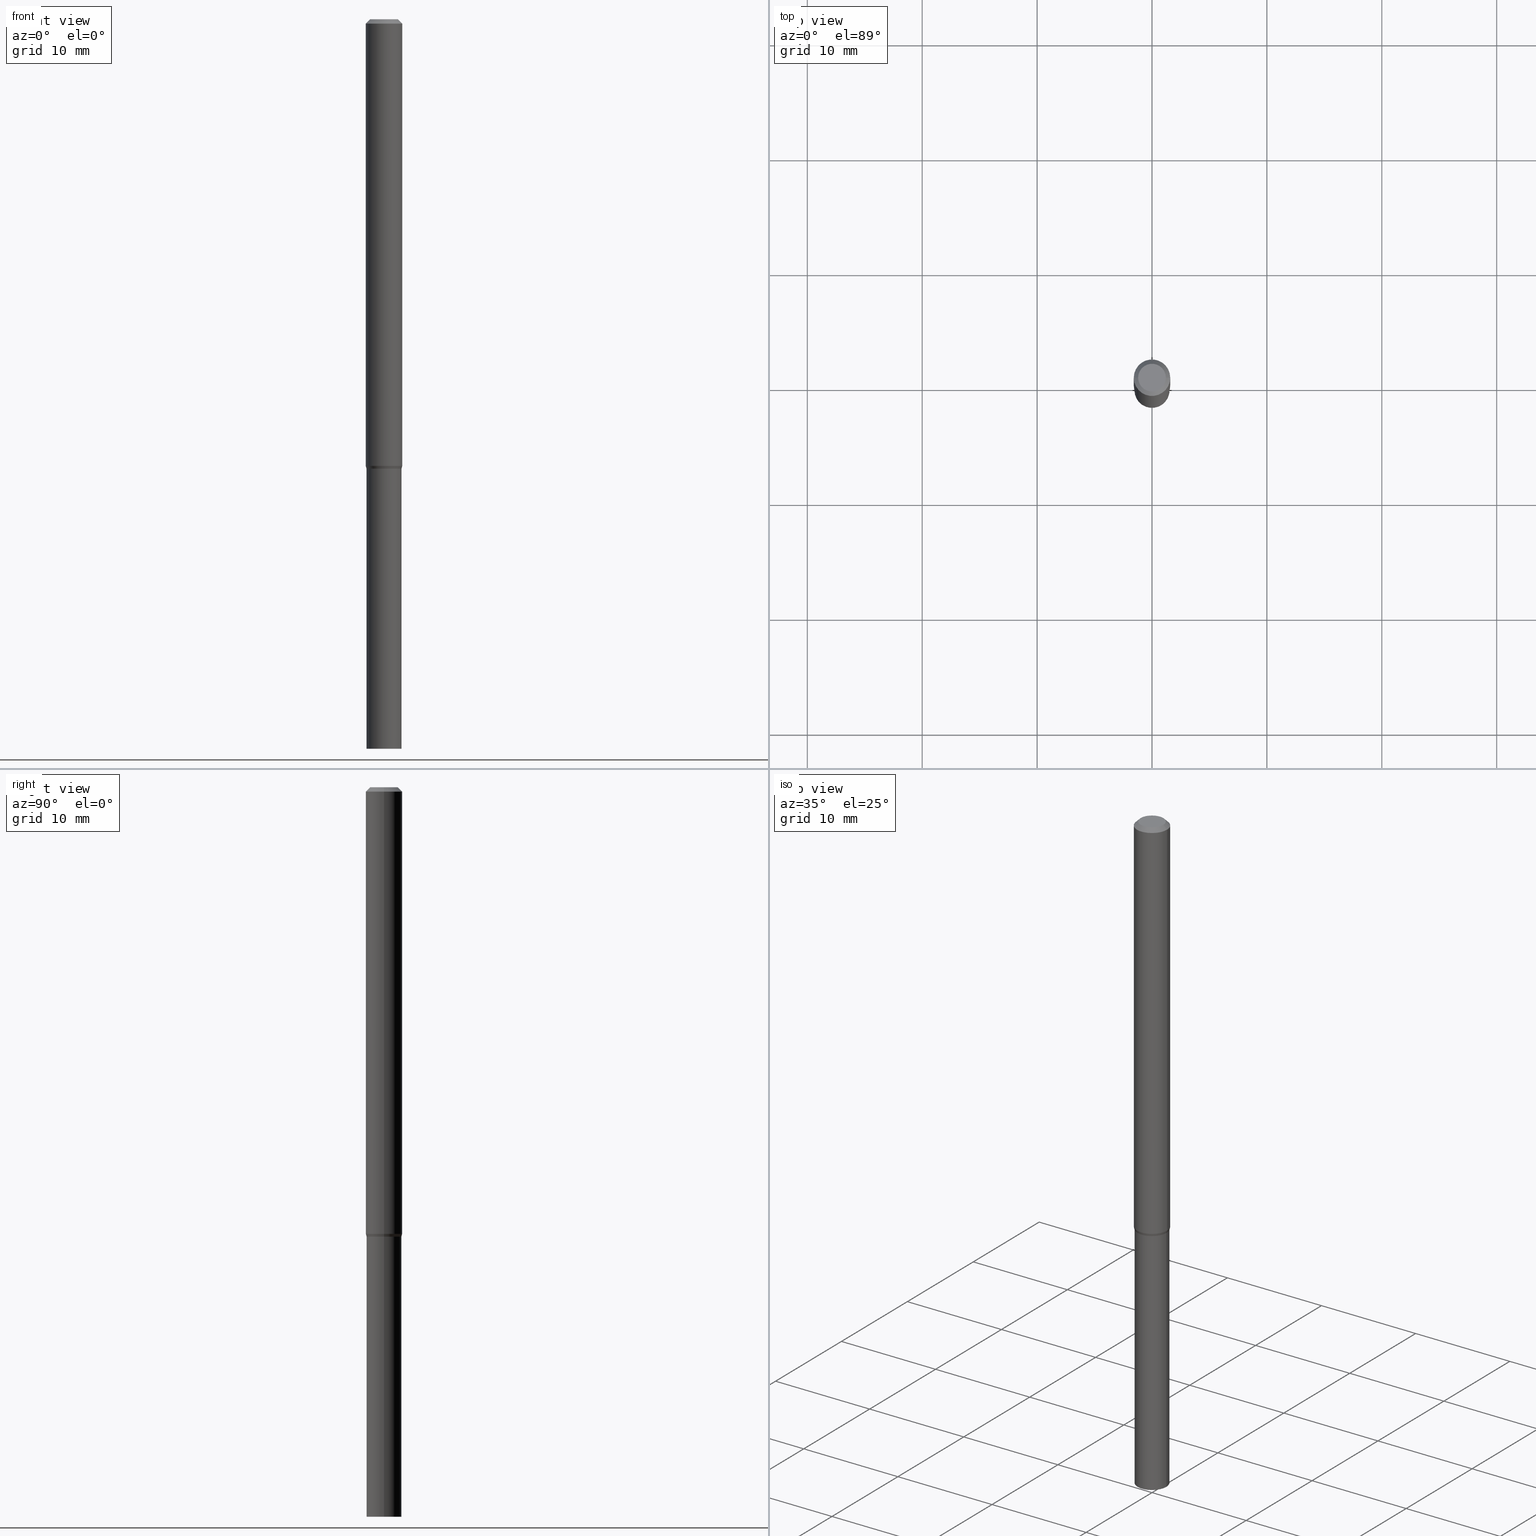
[diagram: canonical four-view strip — front | top / right | iso, engineering-drawing reading convention]
A machine part, canonical four-view strip (front | top / right | iso — engineering-drawing reading convention). The complete STEP part file that produces these views, byte-faithful:
ISO-10303-21;
HEADER;
FILE_DESCRIPTION (( 'STEP AP203' ),
    '1' );
FILE_NAME ('01282.STEP',
    '2024-03-20T00:58:47',
    ( '' ),
    ( '' ),
    'SwSTEP 2.0',
    'SolidWorks 2023',
    '' );
FILE_SCHEMA (( 'CONFIG_CONTROL_DESIGN' ));
ENDSEC;

DATA;
#1 = PERSON_AND_ORGANIZATION ( #309, #400 ) ;
#2 = ORIENTED_EDGE ( 'NONE', *, *, #25, .T. ) ;
#3 = DIRECTION ( 'NONE',  ( 1.000000000000000000, -6.982962677686266711E-15, 0.000000000000000000 ) ) ;
#4 = AXIS2_PLACEMENT_3D ( 'NONE', #335, #409, #124 ) ;
#5 = EDGE_LOOP ( 'NONE', ( #407, #432, #93, #16 ) ) ;
#6 = CALENDAR_DATE ( 2024, 19, 3 ) ;
#7 = DIMENSIONAL_EXPONENTS ( 1.000000000000000000, 0.000000000000000000, 0.000000000000000000, 0.000000000000000000, 0.000000000000000000, 0.000000000000000000, 0.000000000000000000 ) ;
#8 = ORIENTED_EDGE ( 'NONE', *, *, #361, .T. ) ;
#9 = VERTEX_POINT ( 'NONE', #159 ) ;
#10 = PERSON_AND_ORGANIZATION ( #309, #400 ) ;
#11 = ADVANCED_BREP_SHAPE_REPRESENTATION ( '01282', ( #211, #81, #4 ), #195 ) ;
#12 = ADVANCED_FACE ( 'NONE', ( #301 ), #98, .T. ) ;
#13 = ORIENTED_EDGE ( 'NONE', *, *, #156, .T. ) ;
#14 = LOCAL_TIME ( 20, 58, 47.00000000000000000, #259 ) ;
#15 = AXIS2_PLACEMENT_3D ( 'NONE', #104, #349, #30 ) ;
#16 = ORIENTED_EDGE ( 'NONE', *, *, #21, .F. ) ;
#17 = EDGE_LOOP ( 'NONE', ( #75, #13, #234, #299 ) ) ;
#18 = ADVANCED_FACE ( 'NONE', ( #125 ), #52, .T. ) ;
#19 = CARTESIAN_POINT ( 'NONE',  ( 0.05999999999999999778, -5.795859022479621407E-15, -1.540000000000000258 ) ) ;
#20 = VERTEX_POINT ( 'NONE', #386 ) ;
#21 = EDGE_CURVE ( 'NONE', #339, #302, #109, .T. ) ;
#22 = CIRCLE ( 'NONE', #290, 0.06000000000000046962 ) ;
#23 = DIRECTION ( 'NONE',  ( 1.000000000000000000, -6.982962677686259611E-15, 0.000000000000000000 ) ) ;
#24 = LOCAL_TIME ( 20, 58, 47.00000000000000000, #330 ) ;
#25 = EDGE_CURVE ( 'NONE', #395, #122, #172, .T. ) ;
#26 = ORIENTED_EDGE ( 'NONE', *, *, #178, .F. ) ;
#27 = DIRECTION ( 'NONE',  ( 1.000000000000000000, -6.982962677686265922E-15, 4.876176775795935793E-29 ) ) ;
#28 = CARTESIAN_POINT ( 'NONE',  ( 0.05949999999999999734, -5.792367541140778400E-15, -1.540000000000000480 ) ) ;
#29 = CARTESIAN_POINT ( 'NONE',  ( 3.668203209277705088E-31, -5.237222008264718399E-17, -0.01499999999999999944 ) ) ;
#30 = DIRECTION ( 'NONE',  ( -1.000000000000000000, 6.982962677686265922E-15, -4.876176775795935793E-29 ) ) ;
#31 = DIRECTION ( 'NONE',  ( -2.438088387897960049E-29, 3.491481338843145188E-15, 1.000000000000000000 ) ) ;
#32 = CONICAL_SURFACE ( 'NONE', #84, 0.06000000000000046962, 0.2617993877991488527 ) ;
#33 = DIRECTION ( 'NONE',  ( 1.000000000000000000, -6.982962677686266711E-15, 4.876176775795935793E-29 ) ) ;
#34 = FACE_OUTER_BOUND ( 'NONE', #148, .T. ) ;
#35 = DIRECTION ( 'NONE',  ( 1.000000000000000000, -6.982962677686265922E-15, 4.876176775795935793E-29 ) ) ;
#36 = CARTESIAN_POINT ( 'NONE',  ( -0.06000000000000046962, -4.925385853977582730E-15, -1.540000000000000036 ) ) ;
#37 = PRODUCT_DEFINITION_FORMATION_WITH_SPECIFIED_SOURCE ( 'ANY', '', #379, .NOT_KNOWN. ) ;
#38 = CALENDAR_DATE ( 2024, 19, 3 ) ;
#39 = EDGE_CURVE ( 'NONE', #89, #222, #113, .T. ) ;
#40 = PERSON_AND_ORGANIZATION ( #309, #400 ) ;
#41 = ORIENTED_EDGE ( 'NONE', *, *, #278, .F. ) ;
#42 = APPROVAL_STATUS ( 'not_yet_approved' ) ;
#43 = AXIS2_PLACEMENT_3D ( 'NONE', #69, #304, #212 ) ;
#44 = EDGE_CURVE ( 'NONE', #164, #127, #368, .T. ) ;
#45 = ORIENTED_EDGE ( 'NONE', *, *, #242, .F. ) ;
#46 = ORIENTED_EDGE ( 'NONE', *, *, #458, .F. ) ;
#47 = EDGE_CURVE ( 'NONE', #122, #227, #427, .T. ) ;
#48 = EDGE_LOOP ( 'NONE', ( #26, #45 ) ) ;
#49 = ORIENTED_EDGE ( 'NONE', *, *, #110, .F. ) ;
#50 = SECURITY_CLASSIFICATION ( '', '', #398 ) ;
#51 = LINE ( 'NONE', #191, #332 ) ;
#52 = CONICAL_SURFACE ( 'NONE', #170, 0.06250000000000000000, 0.7853981633974450594 ) ;
#53 = ORIENTED_EDGE ( 'NONE', *, *, #184, .F. ) ;
#54 = EDGE_LOOP ( 'NONE', ( #369, #329, #413, #232 ) ) ;
#55 = ORIENTED_EDGE ( 'NONE', *, *, #128, .F. ) ;
#56 = APPLICATION_CONTEXT ( 'configuration controlled 3d designs of mechanical parts and assemblies' ) ;
#57 = CARTESIAN_POINT ( 'NONE',  ( 0.06000000000000046962, -5.795859022479622985E-15, -1.540000000000000036 ) ) ;
#58 = DIRECTION ( 'NONE',  ( -2.445468806185136597E-29, 3.491481338843145583E-15, 1.000000000000000000 ) ) ;
#59 = EDGE_CURVE ( 'NONE', #382, #183, #306, .T. ) ;
#60 = DIRECTION ( 'NONE',  ( -2.445468806185136597E-29, 3.491481338843145583E-15, 1.000000000000000000 ) ) ;
#61 = CARTESIAN_POINT ( 'NONE',  ( 0.000000000000000000, 0.000000000000000000, 0.000000000000000000 ) ) ;
#62 = CARTESIAN_POINT ( 'NONE',  ( -2.428242233434862517E-45, 3.466886358470595669E-31, 9.929557176494321944E-17 ) ) ;
#63 = CARTESIAN_POINT ( 'NONE',  ( 3.766021961525110516E-29, -5.376881261818443984E-15, -1.540000000000000036 ) ) ;
#64 = CIRCLE ( 'NONE', #366, 0.05949999999999999734 ) ;
#65 = CARTESIAN_POINT ( 'NONE',  ( -0.05999999999999999778, -6.626466663007093973E-15, -1.540000000000000258 ) ) ;
#66 = DIRECTION ( 'NONE',  ( -2.445468806185136597E-29, 3.491481338843145583E-15, 1.000000000000000000 ) ) ;
#67 = CARTESIAN_POINT ( 'NONE',  ( 0.000000000000000000, 0.000000000000000000, 0.000000000000000000 ) ) ;
#68 = FACE_OUTER_BOUND ( 'NONE', #5, .T. ) ;
#69 = CARTESIAN_POINT ( 'NONE',  ( 0.000000000000000000, 0.000000000000000000, 0.000000000000000000 ) ) ;
#70 = CARTESIAN_POINT ( 'NONE',  ( 3.766021961525111637E-29, -5.376881261818446351E-15, -1.540000000000000480 ) ) ;
#71 = AXIS2_PLACEMENT_3D ( 'NONE', #29, #100, #466 ) ;
#72 = VECTOR ( 'NONE', #324, 39.37007874015748143 ) ;
#73 = CALENDAR_DATE ( 2024, 19, 3 ) ;
#74 = CC_DESIGN_PERSON_AND_ORGANIZATION_ASSIGNMENT ( #1, #288, ( #37 ) ) ;
#75 = ORIENTED_EDGE ( 'NONE', *, *, #44, .F. ) ;
#76 = DIRECTION ( 'NONE',  ( -2.445468806185136597E-29, 3.491481338843145583E-15, 1.000000000000000000 ) ) ;
#77 = VECTOR ( 'NONE', #145, 39.37007874015748143 ) ;
#78 = DIRECTION ( 'NONE',  ( -2.445468806185136597E-29, 3.491481338843145583E-15, 1.000000000000000000 ) ) ;
#79 = EDGE_LOOP ( 'NONE', ( #411, #296 ) ) ;
#80 = APPROVAL_STATUS ( 'not_yet_approved' ) ;
#81 = MANIFOLD_SOLID_BREP ( 'Body-Move/Copy2[2]', #293 ) ;
#82 = EDGE_LOOP ( 'NONE', ( #85, #452, #8, #403 ) ) ;
#83 = EDGE_CURVE ( 'NONE', #302, #9, #262, .T. ) ;
#84 = AXIS2_PLACEMENT_3D ( 'NONE', #281, #213, #462 ) ;
#85 = ORIENTED_EDGE ( 'NONE', *, *, #25, .F. ) ;
#86 = CARTESIAN_POINT ( 'NONE',  ( 0.06000000000000046962, -5.795859022479622985E-15, -1.540000000000000036 ) ) ;
#87 = VECTOR ( 'NONE', #243, 39.37007874015748143 ) ;
#88 = DATE_TIME_ROLE ( 'creation_date' ) ;
#89 = VERTEX_POINT ( 'NONE', #36 ) ;
#90 = FACE_OUTER_BOUND ( 'NONE', #48, .T. ) ;
#91 = ORIENTED_EDGE ( 'NONE', *, *, #312, .T. ) ;
#92 = PLANE ( 'NONE',  #425 ) ;
#93 = ORIENTED_EDGE ( 'NONE', *, *, #83, .F. ) ;
#94 = EDGE_CURVE ( 'NONE', #395, #20, #197, .T. ) ;
#95 = CONICAL_SURFACE ( 'NONE', #394, 0.06250000000000000000, 0.7853981633974450594 ) ;
#96 = EDGE_CURVE ( 'NONE', #382, #196, #347, .T. ) ;
#97 = CARTESIAN_POINT ( 'NONE',  ( 0.000000000000000000, 0.000000000000000000, 0.000000000000000000 ) ) ;
#98 = CONICAL_SURFACE ( 'NONE', #221, 0.06000000000000046962, 0.2617993877991488527 ) ;
#99 = DIRECTION ( 'NONE',  ( -1.000000000000000000, 6.982962677686265922E-15, -4.876176775795935793E-29 ) ) ;
#100 = DIRECTION ( 'NONE',  ( -2.445468806185136597E-29, 3.491481338843145583E-15, 1.000000000000000000 ) ) ;
#101 = DIRECTION ( 'NONE',  ( 1.000000000000000000, -6.982962677686261977E-15, 0.000000000000000000 ) ) ;
#102 = CARTESIAN_POINT ( 'NONE',  ( 0.06000000000000019901, -5.794113281810200692E-15, -1.539500000000000313 ) ) ;
#103 = ADVANCED_FACE ( 'NONE', ( #136 ), #134, .T. ) ;
#104 = CARTESIAN_POINT ( 'NONE',  ( 3.316907271900976096E-16, 0.04749999999999999362, -1.161975777125777867E-16 ) ) ;
#105 = FACE_OUTER_BOUND ( 'NONE', #54, .T. ) ;
#106 = CIRCLE ( 'NONE', #416, 0.05999999999999999778 ) ;
#107 = ADVANCED_FACE ( 'NONE', ( #34 ), #391, .F. ) ;
#108 = LENGTH_MEASURE_WITH_UNIT ( LENGTH_MEASURE( 0.02539999999999999897 ), #247 );
#109 = LINE ( 'NONE', #28, #456 ) ;
#110 = EDGE_CURVE ( 'NONE', #183, #382, #360, .T. ) ;
#111 = PERSON_AND_ORGANIZATION_ROLE ( 'classification_officer' ) ;
#112 = CC_DESIGN_DATE_AND_TIME_ASSIGNMENT ( #150, #88, ( #286 ) ) ;
#113 = CIRCLE ( 'NONE', #252, 0.06000000000000046962 ) ;
#114 = VECTOR ( 'NONE', #186, 39.37007874015748143 ) ;
#115 = DATE_AND_TIME ( #333, #155 ) ;
#116 = DATE_AND_TIME ( #38, #383 ) ;
#117 = CIRCLE ( 'NONE', #344, 0.04749999999999999362 ) ;
#118 = ORIENTED_EDGE ( 'NONE', *, *, #458, .T. ) ;
#119 = ORIENTED_EDGE ( 'NONE', *, *, #270, .T. ) ;
#120 = ADVANCED_FACE ( 'NONE', ( #421 ), #282, .F. ) ;
#121 = CARTESIAN_POINT ( 'NONE',  ( 3.668203209277705088E-31, -5.237222008264718399E-17, -0.01499999999999999944 ) ) ;
#122 = VERTEX_POINT ( 'NONE', #65 ) ;
#123 = ADVANCED_FACE ( 'NONE', ( #175 ), #461, .T. ) ;
#124 = DIRECTION ( 'NONE',  ( 1.000000000000000000, 0.000000000000000000, 0.000000000000000000 ) ) ;
#125 = FACE_OUTER_BOUND ( 'NONE', #310, .T. ) ;
#126 = CLOSED_SHELL ( 'NONE', ( #103, #362, #123, #107 ) ) ;
#127 = VERTEX_POINT ( 'NONE', #284 ) ;
#128 = EDGE_CURVE ( 'NONE', #222, #302, #317, .T. ) ;
#129 = ORIENTED_EDGE ( 'NONE', *, *, #203, .T. ) ;
#130 = CARTESIAN_POINT ( 'NONE',  ( 3.766021961525111077E-29, -5.376881261818445562E-15, -1.540000000000000258 ) ) ;
#131 = CARTESIAN_POINT ( 'NONE',  ( 3.743205426942595148E-29, -5.344305297442846949E-15, -1.530669872981079482 ) ) ;
#132 = CC_DESIGN_APPROVAL ( #204, ( #37 ) ) ;
#133 = CARTESIAN_POINT ( 'NONE',  ( -0.06000000000000033085, 4.263256414560624623E-16, -2.951361054152959528E-30 ) ) ;
#134 = CYLINDRICAL_SURFACE ( 'NONE', #441, 0.05999999999999999778 ) ;
#135 = DIRECTION ( 'NONE',  ( 1.000000000000000000, -6.982962677686267499E-15, 4.884662768193073002E-29 ) ) ;
#136 = FACE_OUTER_BOUND ( 'NONE', #404, .T. ) ;
#137 = DIRECTION ( 'NONE',  ( -2.445468806185136877E-29, 3.491481338843145188E-15, 1.000000000000000000 ) ) ;
#138 = ADVANCED_FACE ( 'NONE', ( #464 ), #144, .T. ) ;
#139 = DIRECTION ( 'NONE',  ( 1.000000000000000000, -6.982962677686267499E-15, 4.876176775795936353E-29 ) ) ;
#140 = UNCERTAINTY_MEASURE_WITH_UNIT (LENGTH_MEASURE( 1.000000000000000082E-05 ), #322, 'distance_accuracy_value', 'NONE');
#141 = DIRECTION ( 'NONE',  ( 1.000000000000000000, -6.982962677686259611E-15, 0.000000000000000000 ) ) ;
#142 = AXIS2_PLACEMENT_3D ( 'NONE', #61, #318, #357 ) ;
#143 = AXIS2_PLACEMENT_3D ( 'NONE', #429, #205, #423 ) ;
#144 = CYLINDRICAL_SURFACE ( 'NONE', #43, 0.06250000000000000000 ) ;
#145 = DIRECTION ( 'NONE',  ( -2.445468806185136877E-29, 3.491481338843145188E-15, 1.000000000000000000 ) ) ;
#146 = EDGE_CURVE ( 'NONE', #20, #395, #374, .T. ) ;
#147 = CALENDAR_DATE ( 2024, 19, 3 ) ;
#148 = EDGE_LOOP ( 'NONE', ( #192, #265 ) ) ;
#149 = CONICAL_SURFACE ( 'NONE', #372, 0.05949999999999999734, 0.7853981633974739252 ) ;
#150 = DATE_AND_TIME ( #147, #237 ) ;
#151 = EDGE_LOOP ( 'NONE', ( #336, #190, #258, #274 ) ) ;
#152 = SHAPE_DEFINITION_REPRESENTATION ( #323, #11 ) ;
#153 = EDGE_LOOP ( 'NONE', ( #157, #447, #439, #276 ) ) ;
#154 = APPROVAL_ROLE ( '' ) ;
#155 = LOCAL_TIME ( 20, 58, 47.00000000000000000, #253 ) ;
#156 = EDGE_CURVE ( 'NONE', #164, #196, #219, .T. ) ;
#157 = ORIENTED_EDGE ( 'NONE', *, *, #226, .F. ) ;
#158 = AXIS2_PLACEMENT_3D ( 'NONE', #199, #355, #418 ) ;
#159 = CARTESIAN_POINT ( 'NONE',  ( -0.06000000000000019901, -4.948809879692962779E-15, -1.539500000000000313 ) ) ;
#160 = ORIENTED_EDGE ( 'NONE', *, *, #96, .T. ) ;
#161 = CARTESIAN_POINT ( 'NONE',  ( 0.06250000000000000000, -4.811533449433679005E-16, -0.01499999999999999944 ) ) ;
#162 = CYLINDRICAL_SURFACE ( 'NONE', #163, 0.06000000000000033085 ) ;
#163 = AXIS2_PLACEMENT_3D ( 'NONE', #97, #412, #273 ) ;
#164 = VERTEX_POINT ( 'NONE', #365 ) ;
#165 = AXIS2_PLACEMENT_3D ( 'NONE', #131, #58, #321 ) ;
#166 = DIRECTION ( 'NONE',  ( 1.000000000000000000, -6.982962677686267499E-15, 4.876176775795936353E-29 ) ) ;
#167 = DIRECTION ( 'NONE',  ( -2.445468806185136877E-29, 3.491481338843145188E-15, 1.000000000000000000 ) ) ;
#168 = DIRECTION ( 'NONE',  ( -2.445468806185136597E-29, 3.491481338843145583E-15, 1.000000000000000000 ) ) ;
#169 = DIRECTION ( 'NONE',  ( -2.445468806185136597E-29, 3.491481338843145583E-15, 1.000000000000000000 ) ) ;
#170 = AXIS2_PLACEMENT_3D ( 'NONE', #272, #410, #287 ) ;
#171 = APPLICATION_CONTEXT ( 'configuration controlled 3d designs of mechanical parts and assemblies' ) ;
#172 = LINE ( 'NONE', #426, #87 ) ;
#173 = EDGE_CURVE ( 'NONE', #196, #216, #448, .T. ) ;
#174 = CARTESIAN_POINT ( 'NONE',  ( 3.766021961525111637E-29, -5.376881261818446351E-15, -1.540000000000000480 ) ) ;
#175 = FACE_OUTER_BOUND ( 'NONE', #82, .T. ) ;
#176 = DIRECTION ( 'NONE',  ( 0.7071067811865656694, -2.468850131082446387E-15, 0.7071067811865294761 ) ) ;
#177 = VECTOR ( 'NONE', #311, 39.37007874015748143 ) ;
#178 = EDGE_CURVE ( 'NONE', #339, #343, #305, .T. ) ;
#179 = APPROVAL_ROLE ( '' ) ;
#180 = CARTESIAN_POINT ( 'NONE',  ( 3.668203209277705088E-31, -5.237222008264718399E-17, -0.01499999999999999944 ) ) ;
#181 = DIRECTION ( 'NONE',  ( -2.445468806185136597E-29, 3.491481338843145583E-15, 1.000000000000000000 ) ) ;
#182 = APPROVAL_PERSON_ORGANIZATION ( #364, #303, #437 ) ;
#183 = VERTEX_POINT ( 'NONE', #194 ) ;
#184 = EDGE_CURVE ( 'NONE', #227, #122, #106, .T. ) ;
#185 = EDGE_LOOP ( 'NONE', ( #363, #450, #267, #385 ) ) ;
#186 = DIRECTION ( 'NONE',  ( 0.7071067811865452413, -7.319954787623248157E-15, -0.7071067811865497932 ) ) ;
#187 = ORIENTED_EDGE ( 'NONE', *, *, #264, .T. ) ;
#188 = AXIS2_PLACEMENT_3D ( 'NONE', #236, #453, #239 ) ;
#189 = CC_DESIGN_PERSON_AND_ORGANIZATION_ASSIGNMENT ( #435, #291, ( #286 ) ) ;
#190 = ORIENTED_EDGE ( 'NONE', *, *, #289, .T. ) ;
#191 = CARTESIAN_POINT ( 'NONE',  ( -0.06000000000000046962, -4.950555620362381127E-15, -1.540000000000000036 ) ) ;
#192 = ORIENTED_EDGE ( 'NONE', *, *, #184, .T. ) ;
#193 = ORIENTED_EDGE ( 'NONE', *, *, #110, .T. ) ;
#194 = CARTESIAN_POINT ( 'NONE',  ( -0.06250000000000000000, -4.900216087592785122E-15, -1.530669872981079482 ) ) ;
#195 =( GEOMETRIC_REPRESENTATION_CONTEXT ( 3 ) GLOBAL_UNCERTAINTY_ASSIGNED_CONTEXT ( ( #140 ) ) GLOBAL_UNIT_ASSIGNED_CONTEXT ( ( #322, #428, #251 ) ) REPRESENTATION_CONTEXT ( 'NONE', 'WORKASPACE' ) );
#196 = VERTEX_POINT ( 'NONE', #231 ) ;
#197 = CIRCLE ( 'NONE', #158, 0.05999999999999999778 ) ;
#198 = CARTESIAN_POINT ( 'NONE',  ( -0.05949999999999999734, -4.954108334041186759E-15, -1.540000000000000480 ) ) ;
#199 = CARTESIAN_POINT ( 'NONE',  ( 6.113672015462842613E-29, -8.728703347107864943E-15, -2.500000000000000000 ) ) ;
#200 = DIRECTION ( 'NONE',  ( -1.000000000000000000, 6.982962677686266711E-15, 0.000000000000000000 ) ) ;
#201 = DIRECTION ( 'NONE',  ( -2.445468806185136597E-29, 3.491481338843145583E-15, 1.000000000000000000 ) ) ;
#202 = DESIGN_CONTEXT ( 'detailed design', #56, 'design' ) ;
#203 = EDGE_CURVE ( 'NONE', #222, #382, #268, .T. ) ;
#204 = APPROVAL ( #42, 'UNSPECIFIED' ) ;
#205 = DIRECTION ( 'NONE',  ( -2.445468806185136597E-29, 3.491481338843145583E-15, 1.000000000000000000 ) ) ;
#206 = CARTESIAN_POINT ( 'NONE',  ( -0.05949999999999999734, -4.951459106867074769E-15, -1.540000000000000480 ) ) ;
#207 = CARTESIAN_POINT ( 'NONE',  ( 3.766021961525110516E-29, -5.376881261818443984E-15, -1.540000000000000036 ) ) ;
#208 = CARTESIAN_POINT ( 'NONE',  ( 0.05999999999999999778, -4.189777606611760421E-16, 2.925706065477561756E-30 ) ) ;
#209 = CARTESIAN_POINT ( 'NONE',  ( 0.06000000000000033085, -4.189777606611783101E-16, 2.925706065477577521E-30 ) ) ;
#210 = DIRECTION ( 'NONE',  ( -2.445468806185136597E-29, 3.491481338843145583E-15, 1.000000000000000000 ) ) ;
#211 = MANIFOLD_SOLID_BREP ( 'Body-Move/Copy2[1]', #126 ) ;
#212 = DIRECTION ( 'NONE',  ( 1.000000000000000000, -6.982962677686266711E-15, 4.876176775795935793E-29 ) ) ;
#213 = DIRECTION ( 'NONE',  ( -2.445468806185136597E-29, 3.491481338843145583E-15, 1.000000000000000000 ) ) ;
#214 = CIRCLE ( 'NONE', #71, 0.06250000000000000000 ) ;
#215 = PERSON_AND_ORGANIZATION_ROLE ( 'design_owner' ) ;
#216 = VERTEX_POINT ( 'NONE', #300 ) ;
#217 = APPROVAL_DATE_TIME ( #116, #303 ) ;
#218 = CC_DESIGN_PERSON_AND_ORGANIZATION_ASSIGNMENT ( #10, #215, ( #379 ) ) ;
#219 = LINE ( 'NONE', #161, #114 ) ;
#220 = CIRCLE ( 'NONE', #188, 0.06000000000000019901 ) ;
#221 = AXIS2_PLACEMENT_3D ( 'NONE', #230, #444, #377 ) ;
#222 = VERTEX_POINT ( 'NONE', #86 ) ;
#223 = COORDINATED_UNIVERSAL_TIME_OFFSET ( 5, 0, .BEHIND. ) ;
#224 = CARTESIAN_POINT ( 'NONE',  ( 6.113672015462842613E-29, -8.728703347107864943E-15, -2.500000000000000000 ) ) ;
#225 = ADVANCED_FACE ( 'NONE', ( #408 ), #95, .T. ) ;
#226 = EDGE_CURVE ( 'NONE', #343, #9, #342, .T. ) ;
#227 = VERTEX_POINT ( 'NONE', #19 ) ;
#228 = CARTESIAN_POINT ( 'NONE',  ( 3.766021961525111637E-29, -5.376881261818446351E-15, -1.540000000000000480 ) ) ;
#229 = AXIS2_PLACEMENT_3D ( 'NONE', #180, #181, #3 ) ;
#230 = CARTESIAN_POINT ( 'NONE',  ( 3.766021961525110516E-29, -5.376881261818443984E-15, -1.540000000000000036 ) ) ;
#231 = CARTESIAN_POINT ( 'NONE',  ( 0.06250000000000000000, -4.888073874380388472E-16, -0.01499999999999999944 ) ) ;
#232 = ORIENTED_EDGE ( 'NONE', *, *, #203, .F. ) ;
#233 = DIRECTION ( 'NONE',  ( -2.438088387897960049E-29, 3.491481338843145188E-15, 1.000000000000000000 ) ) ;
#234 = ORIENTED_EDGE ( 'NONE', *, *, #173, .T. ) ;
#235 = PRODUCT_RELATED_PRODUCT_CATEGORY ( 'detail', '', ( #379 ) ) ;
#236 = CARTESIAN_POINT ( 'NONE',  ( 3.764799227122018275E-29, -5.375135521149024058E-15, -1.539500000000000313 ) ) ;
#237 = LOCAL_TIME ( 20, 58, 47.00000000000000000, #223 ) ;
#238 = ORIENTED_EDGE ( 'NONE', *, *, #312, .F. ) ;
#239 = DIRECTION ( 'NONE',  ( 1.000000000000000000, -6.982962677686261189E-15, 0.000000000000000000 ) ) ;
#240 = CARTESIAN_POINT ( 'NONE',  ( 3.743205426942595148E-29, -5.344305297442846949E-15, -1.530669872981079482 ) ) ;
#241 = DIRECTION ( 'NONE',  ( -2.445468806185136597E-29, 3.491481338843145583E-15, 1.000000000000000000 ) ) ;
#242 = EDGE_CURVE ( 'NONE', #343, #339, #64, .T. ) ;
#243 = DIRECTION ( 'NONE',  ( -2.445468806185136877E-29, 3.491481338843145188E-15, 1.000000000000000000 ) ) ;
#244 = DIRECTION ( 'NONE',  ( 1.000000000000000000, -6.982962677686261977E-15, 0.000000000000000000 ) ) ;
#245 = DIRECTION ( 'NONE',  ( -2.445468806185136877E-29, 3.491481338843145188E-15, 1.000000000000000000 ) ) ;
#246 = AXIS2_PLACEMENT_3D ( 'NONE', #224, #78, #354 ) ;
#247 =( LENGTH_UNIT ( ) NAMED_UNIT ( * ) SI_UNIT ( $, .METRE. ) );
#248 = CARTESIAN_POINT ( 'NONE',  ( 0.000000000000000000, 0.000000000000000000, 0.000000000000000000 ) ) ;
#249 = CYLINDRICAL_SURFACE ( 'NONE', #351, 0.06000000000000033085 ) ;
#250 = CARTESIAN_POINT ( 'NONE',  ( 3.764799227122018275E-29, -5.375135521149024058E-15, -1.539500000000000313 ) ) ;
#251 =( NAMED_UNIT ( * ) SI_UNIT ( $, .STERADIAN. ) SOLID_ANGLE_UNIT ( ) );
#252 = AXIS2_PLACEMENT_3D ( 'NONE', #207, #277, #101 ) ;
#253 = COORDINATED_UNIVERSAL_TIME_OFFSET ( 5, 0, .BEHIND. ) ;
#254 = CONICAL_SURFACE ( 'NONE', #260, 0.05949999999999999734, 0.7853981633974739252 ) ;
#255 = DATE_TIME_ROLE ( 'classification_date' ) ;
#256 = ADVANCED_FACE ( 'NONE', ( #405 ), #162, .F. ) ;
#257 = DATE_AND_TIME ( #6, #24 ) ;
#258 = ORIENTED_EDGE ( 'NONE', *, *, #173, .F. ) ;
#259 = COORDINATED_UNIVERSAL_TIME_OFFSET ( 5, 0, .BEHIND. ) ;
#260 = AXIS2_PLACEMENT_3D ( 'NONE', #70, #326, #353 ) ;
#261 = ADVANCED_FACE ( 'NONE', ( #90 ), #92, .F. ) ;
#262 = CIRCLE ( 'NONE', #402, 0.06000000000000019901 ) ;
#263 = EDGE_LOOP ( 'NONE', ( #434, #371, #119, #55 ) ) ;
#264 = EDGE_CURVE ( 'NONE', #127, #216, #381, .T. ) ;
#265 = ORIENTED_EDGE ( 'NONE', *, *, #47, .T. ) ;
#266 = DIRECTION ( 'NONE',  ( 0.2588190451025201844, 1.565188264969631237E-15, 0.9659258262890684232 ) ) ;
#267 = ORIENTED_EDGE ( 'NONE', *, *, #128, .T. ) ;
#268 = LINE ( 'NONE', #57, #358 ) ;
#269 = VECTOR ( 'NONE', #451, 39.37007874015748143 ) ;
#270 = EDGE_CURVE ( 'NONE', #9, #302, #220, .T. ) ;
#271 = COORDINATED_UNIVERSAL_TIME_OFFSET ( 5, 0, .BEHIND. ) ;
#272 = CARTESIAN_POINT ( 'NONE',  ( 3.668203209277705088E-31, -5.237222008264718399E-17, -0.01499999999999999944 ) ) ;
#273 = DIRECTION ( 'NONE',  ( 1.000000000000000000, -6.982962677686266711E-15, 4.876176775795935793E-29 ) ) ;
#274 = ORIENTED_EDGE ( 'NONE', *, *, #96, .F. ) ;
#275 = CARTESIAN_POINT ( 'NONE',  ( 3.766021961525111637E-29, -5.376881261818446351E-15, -1.540000000000000480 ) ) ;
#276 = ORIENTED_EDGE ( 'NONE', *, *, #270, .F. ) ;
#277 = DIRECTION ( 'NONE',  ( -2.445468806185136597E-29, 3.491481338843145583E-15, 1.000000000000000000 ) ) ;
#278 = EDGE_CURVE ( 'NONE', #89, #183, #51, .T. ) ;
#279 = CARTESIAN_POINT ( 'NONE',  ( 0.06250000000000000000, -5.780740464798238618E-15, -1.530669872981079482 ) ) ;
#280 = DIRECTION ( 'NONE',  ( 1.000000000000000000, -6.982962677686262766E-15, 0.000000000000000000 ) ) ;
#281 = CARTESIAN_POINT ( 'NONE',  ( 3.766021961525110516E-29, -5.376881261818443984E-15, -1.540000000000000036 ) ) ;
#282 = PLANE ( 'NONE',  #15 ) ;
#283 = FACE_OUTER_BOUND ( 'NONE', #153, .T. ) ;
#284 = CARTESIAN_POINT ( 'NONE',  ( -0.04749999999999999362, 3.578768372314212971E-16, 9.929557176494080355E-17 ) ) ;
#285 = VECTOR ( 'NONE', #167, 39.37007874015748143 ) ;
#286 = PRODUCT_DEFINITION ( 'UNKNOWN', '', #37, #202 ) ;
#287 = DIRECTION ( 'NONE',  ( -1.000000000000000000, 6.982962677686266711E-15, 0.000000000000000000 ) ) ;
#288 = PERSON_AND_ORGANIZATION_ROLE ( 'design_supplier' ) ;
#289 = EDGE_CURVE ( 'NONE', #183, #216, #422, .T. ) ;
#290 = AXIS2_PLACEMENT_3D ( 'NONE', #63, #66, #244 ) ;
#291 = PERSON_AND_ORGANIZATION_ROLE ( 'creator' ) ;
#292 = CC_DESIGN_APPROVAL ( #328, ( #50 ) ) ;
#293 = CLOSED_SHELL ( 'NONE', ( #256, #449, #225, #443, #420, #12, #138, #18, #120, #261, #393, #438 ) ) ;
#294 = ORIENTED_EDGE ( 'NONE', *, *, #39, .T. ) ;
#295 = DATE_AND_TIME ( #73, #14 ) ;
#296 = ORIENTED_EDGE ( 'NONE', *, *, #94, .F. ) ;
#297 = APPROVAL_STATUS ( 'not_yet_approved' ) ;
#298 = APPROVAL_PERSON_ORGANIZATION ( #327, #204, #154 ) ;
#299 = ORIENTED_EDGE ( 'NONE', *, *, #264, .F. ) ;
#300 = CARTESIAN_POINT ( 'NONE',  ( -0.06250000000000000000, -2.254249548912684990E-15, -0.01499999999999999944 ) ) ;
#301 = FACE_OUTER_BOUND ( 'NONE', #442, .T. ) ;
#302 = VERTEX_POINT ( 'NONE', #102 ) ;
#303 = APPROVAL ( #297, 'UNSPECIFIED' ) ;
#304 = DIRECTION ( 'NONE',  ( -2.445468806185136597E-29, 3.491481338843145583E-15, 1.000000000000000000 ) ) ;
#305 = CIRCLE ( 'NONE', #316, 0.05949999999999999734 ) ;
#306 = CIRCLE ( 'NONE', #165, 0.06250000000000000000 ) ;
#307 = ORIENTED_EDGE ( 'NONE', *, *, #361, .F. ) ;
#308 = DIRECTION ( 'NONE',  ( -2.445468806185136597E-29, 3.491481338843145583E-15, 1.000000000000000000 ) ) ;
#309 = PERSON ( 'UNSPECIFIED', 'UNSPECIFIED', 'UNSPECIFIED', ('UNSPECIFIED'), ('UNSPECIFIED'), ('UNSPECIFIED') ) ;
#310 = EDGE_LOOP ( 'NONE', ( #380, #46, #187, #91 ) ) ;
#311 = DIRECTION ( 'NONE',  ( -0.7071067811865452413, 2.468850131082233000E-15, -0.7071067811865497932 ) ) ;
#312 = EDGE_CURVE ( 'NONE', #216, #196, #214, .T. ) ;
#313 = EDGE_CURVE ( 'NONE', #222, #89, #22, .T. ) ;
#314 = DIRECTION ( 'NONE',  ( -2.445468806185136597E-29, 3.491481338843145583E-15, 1.000000000000000000 ) ) ;
#315 = PLANE ( 'NONE',  #325 ) ;
#316 = AXIS2_PLACEMENT_3D ( 'NONE', #436, #76, #23 ) ;
#317 = LINE ( 'NONE', #209, #72 ) ;
#318 = DIRECTION ( 'NONE',  ( -2.445468806185136597E-29, 3.491481338843145583E-15, 1.000000000000000000 ) ) ;
#319 = DIRECTION ( 'NONE',  ( 2.438088387897960049E-29, -3.491481338843145188E-15, -1.000000000000000000 ) ) ;
#320 = CARTESIAN_POINT ( 'NONE',  ( -2.428242233434862517E-45, 3.466886358470595669E-31, 9.929557176494321944E-17 ) ) ;
#321 = DIRECTION ( 'NONE',  ( 1.000000000000000000, -6.982962677686262766E-15, 0.000000000000000000 ) ) ;
#322 =( CONVERSION_BASED_UNIT ( 'INCH', #108 ) LENGTH_UNIT ( ) NAMED_UNIT ( #7 ) );
#323 = PRODUCT_DEFINITION_SHAPE ( 'NONE', 'NONE',  #286 ) ;
#324 = DIRECTION ( 'NONE',  ( -2.445468806185136877E-29, 3.491481338843145188E-15, 1.000000000000000000 ) ) ;
#325 = AXIS2_PLACEMENT_3D ( 'NONE', #356, #31, #35 ) ;
#326 = DIRECTION ( 'NONE',  ( -2.445468806185136597E-29, 3.491481338843145583E-15, 1.000000000000000000 ) ) ;
#327 = PERSON_AND_ORGANIZATION ( #309, #400 ) ;
#328 = APPROVAL ( #80, 'UNSPECIFIED' ) ;
#329 = ORIENTED_EDGE ( 'NONE', *, *, #278, .T. ) ;
#330 = COORDINATED_UNIVERSAL_TIME_OFFSET ( 5, 0, .BEHIND. ) ;
#331 = ORIENTED_EDGE ( 'NONE', *, *, #44, .T. ) ;
#332 = VECTOR ( 'NONE', #340, 39.37007874015748143 ) ;
#333 = CALENDAR_DATE ( 2024, 19, 3 ) ;
#334 = ORIENTED_EDGE ( 'NONE', *, *, #289, .F. ) ;
#335 = CARTESIAN_POINT ( 'NONE',  ( 0.000000000000000000, 0.000000000000000000, 0.000000000000000000 ) ) ;
#336 = ORIENTED_EDGE ( 'NONE', *, *, #59, .T. ) ;
#337 = CC_DESIGN_SECURITY_CLASSIFICATION ( #50, ( #37 ) ) ;
#338 = AXIS2_PLACEMENT_3D ( 'NONE', #67, #168, #139 ) ;
#339 = VERTEX_POINT ( 'NONE', #388 ) ;
#340 = DIRECTION ( 'NONE',  ( -0.2588190451025201844, 5.211531920934542364E-15, 0.9659258262890684232 ) ) ;
#341 = ORIENTED_EDGE ( 'NONE', *, *, #146, .T. ) ;
#342 = LINE ( 'NONE', #198, #269 ) ;
#343 = VERTEX_POINT ( 'NONE', #206 ) ;
#344 = AXIS2_PLACEMENT_3D ( 'NONE', #320, #210, #135 ) ;
#345 = AXIS2_PLACEMENT_3D ( 'NONE', #62, #60, #389 ) ;
#346 = EDGE_LOOP ( 'NONE', ( #118, #331 ) ) ;
#347 = LINE ( 'NONE', #457, #465 ) ;
#348 = DIRECTION ( 'NONE',  ( 1.000000000000000000, -6.982962677686259611E-15, 0.000000000000000000 ) ) ;
#349 = DIRECTION ( 'NONE',  ( 2.438088387897960049E-29, -3.491481338843145188E-15, -1.000000000000000000 ) ) ;
#350 = FACE_OUTER_BOUND ( 'NONE', #79, .T. ) ;
#351 = AXIS2_PLACEMENT_3D ( 'NONE', #419, #241, #33 ) ;
#352 = DIRECTION ( 'NONE',  ( 1.000000000000000000, -6.982962677686261189E-15, 0.000000000000000000 ) ) ;
#353 = DIRECTION ( 'NONE',  ( 1.000000000000000000, -6.982962677686259611E-15, 0.000000000000000000 ) ) ;
#354 = DIRECTION ( 'NONE',  ( 1.000000000000000000, -6.982962677686251722E-15, 0.000000000000000000 ) ) ;
#355 = DIRECTION ( 'NONE',  ( -2.445468806185136597E-29, 3.491481338843145583E-15, 1.000000000000000000 ) ) ;
#356 = CARTESIAN_POINT ( 'NONE',  ( 6.194428952736783458E-29, -8.613054816532157721E-15, -2.500000000000000000 ) ) ;
#357 = DIRECTION ( 'NONE',  ( 1.000000000000000000, -6.982962677686266711E-15, 4.876176775795935793E-29 ) ) ;
#358 = VECTOR ( 'NONE', #266, 39.37007874015748143 ) ;
#359 = MECHANICAL_CONTEXT ( 'NONE', #171, 'mechanical' ) ;
#360 = CIRCLE ( 'NONE', #417, 0.06250000000000000000 ) ;
#361 = EDGE_CURVE ( 'NONE', #20, #227, #424, .T. ) ;
#362 = ADVANCED_FACE ( 'NONE', ( #350 ), #315, .F. ) ;
#363 = ORIENTED_EDGE ( 'NONE', *, *, #376, .F. ) ;
#364 = PERSON_AND_ORGANIZATION ( #309, #400 ) ;
#365 = CARTESIAN_POINT ( 'NONE',  ( 0.04749999999999999362, -4.035134999187576651E-16, 9.929557176494579556E-17 ) ) ;
#366 = AXIS2_PLACEMENT_3D ( 'NONE', #275, #415, #348 ) ;
#367 = PERSON_AND_ORGANIZATION_ROLE ( 'creator' ) ;
#368 = CIRCLE ( 'NONE', #345, 0.04749999999999999362 ) ;
#369 = ORIENTED_EDGE ( 'NONE', *, *, #313, .T. ) ;
#370 = EDGE_LOOP ( 'NONE', ( #334, #193, #160, #238 ) ) ;
#371 = ORIENTED_EDGE ( 'NONE', *, *, #376, .T. ) ;
#372 = AXIS2_PLACEMENT_3D ( 'NONE', #174, #169, #141 ) ;
#373 = CARTESIAN_POINT ( 'NONE',  ( -0.06250000000000000000, 3.840629472727444916E-16, -0.01499999999999999944 ) ) ;
#374 = CIRCLE ( 'NONE', #246, 0.05999999999999999778 ) ;
#375 = APPROVAL_PERSON_ORGANIZATION ( #40, #328, #179 ) ;
#376 = EDGE_CURVE ( 'NONE', #89, #9, #455, .T. ) ;
#377 = DIRECTION ( 'NONE',  ( 1.000000000000000000, -6.982962677686261977E-15, 0.000000000000000000 ) ) ;
#378 = DIRECTION ( 'NONE',  ( 2.445468806185136597E-29, -3.491481338843145583E-15, -1.000000000000000000 ) ) ;
#379 = PRODUCT ( '01282', '01282', '', ( #359 ) ) ;
#380 = ORIENTED_EDGE ( 'NONE', *, *, #156, .F. ) ;
#381 = LINE ( 'NONE', #373, #177 ) ;
#382 = VERTEX_POINT ( 'NONE', #279 ) ;
#383 = LOCAL_TIME ( 20, 58, 47.00000000000000000, #271 ) ;
#384 = AXIS2_PLACEMENT_3D ( 'NONE', #454, #319, #99 ) ;
#385 = ORIENTED_EDGE ( 'NONE', *, *, #83, .T. ) ;
#386 = CARTESIAN_POINT ( 'NONE',  ( 0.05999999999999999778, -9.147681107769039999E-15, -2.500000000000000000 ) ) ;
#387 = FACE_OUTER_BOUND ( 'NONE', #151, .T. ) ;
#388 = CARTESIAN_POINT ( 'NONE',  ( 0.05949999999999999734, -5.792367541140778400E-15, -1.540000000000000480 ) ) ;
#389 = DIRECTION ( 'NONE',  ( 1.000000000000000000, -6.982962677686267499E-15, 4.884662768193073002E-29 ) ) ;
#390 = CYLINDRICAL_SURFACE ( 'NONE', #142, 0.06250000000000000000 ) ;
#391 = PLANE ( 'NONE',  #384 ) ;
#392 = CARTESIAN_POINT ( 'NONE',  ( -0.05999999999999999778, -6.626466663007093973E-15, -2.500000000000000000 ) ) ;
#393 = ADVANCED_FACE ( 'NONE', ( #283 ), #254, .T. ) ;
#394 = AXIS2_PLACEMENT_3D ( 'NONE', #121, #378, #200 ) ;
#395 = VERTEX_POINT ( 'NONE', #392 ) ;
#396 = APPLICATION_PROTOCOL_DEFINITION ( 'international standard', 'config_control_design', 1994, #171 ) ;
#397 = APPROVAL_DATE_TIME ( #257, #328 ) ;
#398 = SECURITY_CLASSIFICATION_LEVEL ( 'unclassified' ) ;
#399 = CC_DESIGN_DATE_AND_TIME_ASSIGNMENT ( #115, #255, ( #50 ) ) ;
#400 = ORGANIZATION ( 'UNSPECIFIED', 'UNSPECIFIED', '' ) ;
#401 = APPROVAL_DATE_TIME ( #295, #204 ) ;
#402 = AXIS2_PLACEMENT_3D ( 'NONE', #250, #314, #352 ) ;
#403 = ORIENTED_EDGE ( 'NONE', *, *, #47, .F. ) ;
#404 = EDGE_LOOP ( 'NONE', ( #341, #2, #53, #307 ) ) ;
#405 = FACE_OUTER_BOUND ( 'NONE', #263, .T. ) ;
#406 = CC_DESIGN_PERSON_AND_ORGANIZATION_ASSIGNMENT ( #433, #111, ( #50 ) ) ;
#407 = ORIENTED_EDGE ( 'NONE', *, *, #178, .T. ) ;
#408 = FACE_OUTER_BOUND ( 'NONE', #17, .T. ) ;
#409 = DIRECTION ( 'NONE',  ( 0.000000000000000000, 0.000000000000000000, 1.000000000000000000 ) ) ;
#410 = DIRECTION ( 'NONE',  ( 2.445468806185136597E-29, -3.491481338843145583E-15, -1.000000000000000000 ) ) ;
#411 = ORIENTED_EDGE ( 'NONE', *, *, #146, .F. ) ;
#412 = DIRECTION ( 'NONE',  ( -2.445468806185136597E-29, 3.491481338843145583E-15, 1.000000000000000000 ) ) ;
#413 = ORIENTED_EDGE ( 'NONE', *, *, #59, .F. ) ;
#414 = CC_DESIGN_PERSON_AND_ORGANIZATION_ASSIGNMENT ( #446, #367, ( #37 ) ) ;
#415 = DIRECTION ( 'NONE',  ( -2.445468806185136597E-29, 3.491481338843145583E-15, 1.000000000000000000 ) ) ;
#416 = AXIS2_PLACEMENT_3D ( 'NONE', #130, #308, #445 ) ;
#417 = AXIS2_PLACEMENT_3D ( 'NONE', #240, #460, #280 ) ;
#418 = DIRECTION ( 'NONE',  ( 1.000000000000000000, -6.982962677686251722E-15, 0.000000000000000000 ) ) ;
#419 = CARTESIAN_POINT ( 'NONE',  ( 0.000000000000000000, 0.000000000000000000, 0.000000000000000000 ) ) ;
#420 = ADVANCED_FACE ( 'NONE', ( #105 ), #32, .T. ) ;
#421 = FACE_OUTER_BOUND ( 'NONE', #346, .T. ) ;
#422 = LINE ( 'NONE', #430, #463 ) ;
#423 = DIRECTION ( 'NONE',  ( 1.000000000000000000, -6.982962677686268288E-15, 0.000000000000000000 ) ) ;
#424 = LINE ( 'NONE', #208, #285 ) ;
#425 = AXIS2_PLACEMENT_3D ( 'NONE', #228, #233, #27 ) ;
#426 = CARTESIAN_POINT ( 'NONE',  ( -0.05999999999999999778, 4.263256414560600957E-16, -2.951361054152943413E-30 ) ) ;
#427 = CIRCLE ( 'NONE', #143, 0.05999999999999999778 ) ;
#428 =( NAMED_UNIT ( * ) PLANE_ANGLE_UNIT ( ) SI_UNIT ( $, .RADIAN. ) );
#429 = CARTESIAN_POINT ( 'NONE',  ( 3.766021961525111077E-29, -5.376881261818445562E-15, -1.540000000000000258 ) ) ;
#430 = CARTESIAN_POINT ( 'NONE',  ( -0.06250000000000000000, 4.440892098500626162E-16, -3.074334431409316114E-30 ) ) ;
#431 = APPLICATION_PROTOCOL_DEFINITION ( 'international standard', 'config_control_design', 1994, #56 ) ;
#432 = ORIENTED_EDGE ( 'NONE', *, *, #226, .T. ) ;
#433 = PERSON_AND_ORGANIZATION ( #309, #400 ) ;
#434 = ORIENTED_EDGE ( 'NONE', *, *, #39, .F. ) ;
#435 = PERSON_AND_ORGANIZATION ( #309, #400 ) ;
#436 = CARTESIAN_POINT ( 'NONE',  ( 3.766021961525111637E-29, -5.376881261818446351E-15, -1.540000000000000480 ) ) ;
#437 = APPROVAL_ROLE ( '' ) ;
#438 = ADVANCED_FACE ( 'NONE', ( #459 ), #249, .F. ) ;
#439 = ORIENTED_EDGE ( 'NONE', *, *, #21, .T. ) ;
#440 = CC_DESIGN_APPROVAL ( #303, ( #286 ) ) ;
#441 = AXIS2_PLACEMENT_3D ( 'NONE', #248, #201, #166 ) ;
#442 = EDGE_LOOP ( 'NONE', ( #41, #294, #129, #49 ) ) ;
#443 = ADVANCED_FACE ( 'NONE', ( #387 ), #390, .T. ) ;
#444 = DIRECTION ( 'NONE',  ( -2.445468806185136597E-29, 3.491481338843145583E-15, 1.000000000000000000 ) ) ;
#445 = DIRECTION ( 'NONE',  ( 1.000000000000000000, -6.982962677686268288E-15, 0.000000000000000000 ) ) ;
#446 = PERSON_AND_ORGANIZATION ( #309, #400 ) ;
#447 = ORIENTED_EDGE ( 'NONE', *, *, #242, .T. ) ;
#448 = CIRCLE ( 'NONE', #229, 0.06250000000000000000 ) ;
#449 = ADVANCED_FACE ( 'NONE', ( #68 ), #149, .T. ) ;
#450 = ORIENTED_EDGE ( 'NONE', *, *, #313, .F. ) ;
#451 = DIRECTION ( 'NONE',  ( -0.7071067811865656694, 7.493145998870420424E-15, 0.7071067811865294761 ) ) ;
#452 = ORIENTED_EDGE ( 'NONE', *, *, #94, .T. ) ;
#453 = DIRECTION ( 'NONE',  ( -2.445468806185136597E-29, 3.491481338843145583E-15, 1.000000000000000000 ) ) ;
#454 = CARTESIAN_POINT ( 'NONE',  ( 4.189777606612136116E-16, 0.05999999999999462014, -1.540000000000000480 ) ) ;
#455 = LINE ( 'NONE', #133, #77 ) ;
#456 = VECTOR ( 'NONE', #176, 39.37007874015748143 ) ;
#457 = CARTESIAN_POINT ( 'NONE',  ( 0.06250000000000000000, -4.364351673553916694E-16, 3.047610484872459871E-30 ) ) ;
#458 = EDGE_CURVE ( 'NONE', #127, #164, #117, .T. ) ;
#459 = FACE_OUTER_BOUND ( 'NONE', #185, .T. ) ;
#460 = DIRECTION ( 'NONE',  ( -2.445468806185136597E-29, 3.491481338843145583E-15, 1.000000000000000000 ) ) ;
#461 = CYLINDRICAL_SURFACE ( 'NONE', #338, 0.05999999999999999778 ) ;
#462 = DIRECTION ( 'NONE',  ( 1.000000000000000000, -6.982962677686261977E-15, 0.000000000000000000 ) ) ;
#463 = VECTOR ( 'NONE', #137, 39.37007874015748143 ) ;
#464 = FACE_OUTER_BOUND ( 'NONE', #370, .T. ) ;
#465 = VECTOR ( 'NONE', #245, 39.37007874015748143 ) ;
#466 = DIRECTION ( 'NONE',  ( 1.000000000000000000, -6.982962677686266711E-15, 0.000000000000000000 ) ) ;
ENDSEC;
END-ISO-10303-21;
